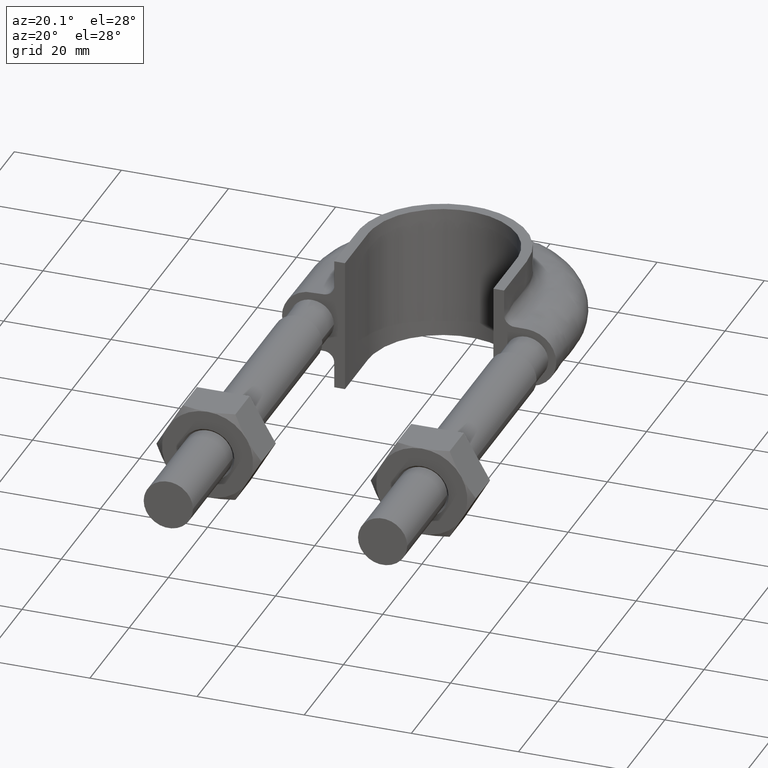
[diagram: clean part render]
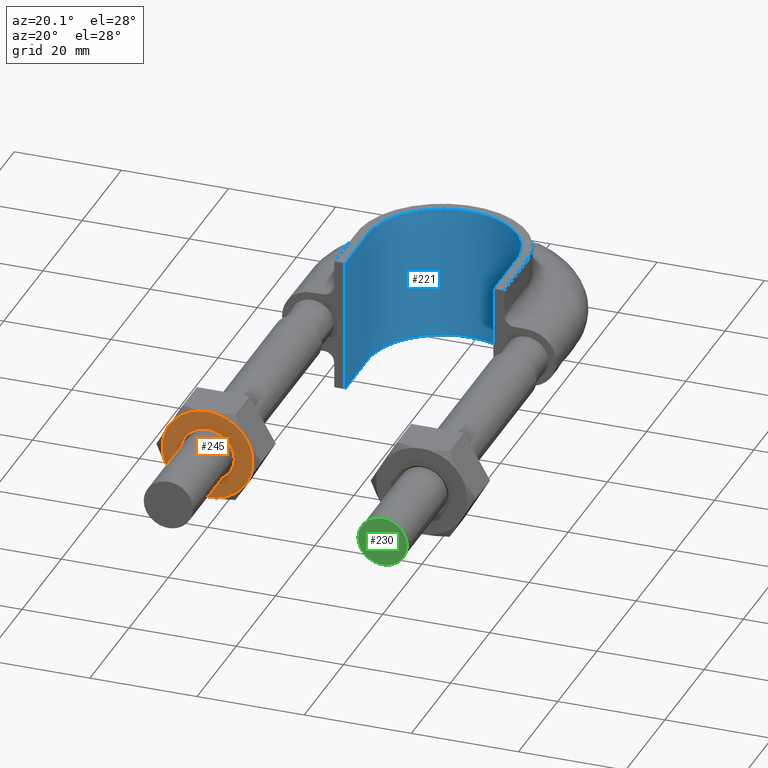
[diagram: same view with three faces highlighted in distinct colors, each labeled with its STEP entity id]
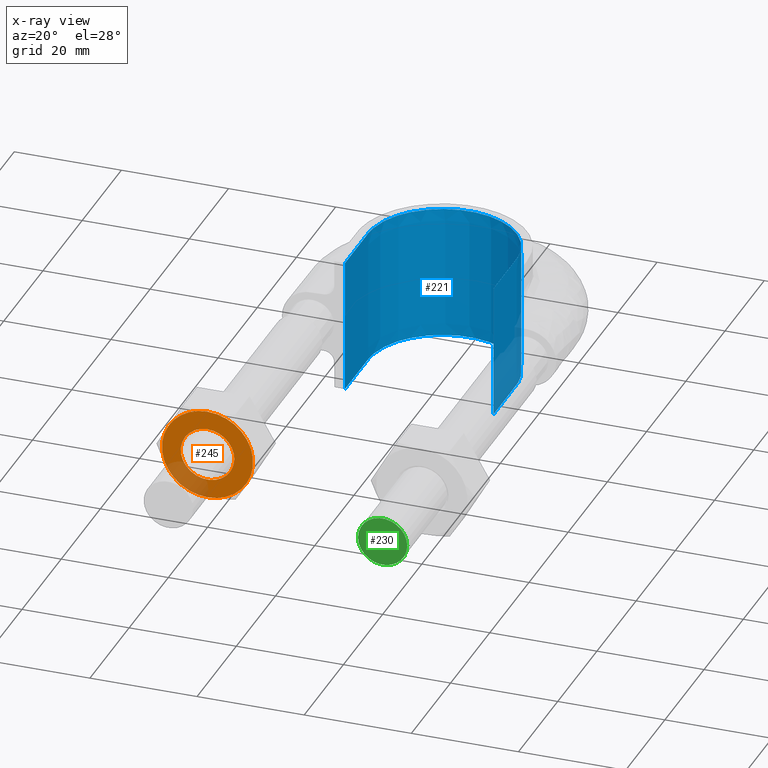
[diagram: x-ray of the same camera — body ghosted, the three highlighted faces saturated]
A machine part, auxiliary view with three faces highlighted in distinct colors.
The next image is the same camera in x-ray (body ghosted, the three faces saturated) — at least one of them is partly hidden behind the body in this view.
Their STEP definitions:

[orange] entity #245 — the highlighted planar face has unit normal (0, 1, 0).
#245 = ADVANCED_FACE( '', ( #342, #343 ), #344, .F. );
#342 = FACE_OUTER_BOUND( '', #1200, .T. );
#343 = FACE_BOUND( '', #1201, .T. );
#344 = PLANE( '', #1202 );
#1200 = EDGE_LOOP( '', ( #1475, #1476, #1477, #1478, #1479, #1480 ) );
#1201 = EDGE_LOOP( '', ( #1481 ) );
#1202 = AXIS2_PLACEMENT_3D( '', #1482, #1483, #1484 );
#1475 = ORIENTED_EDGE( '', *, *, #1791, .F. );
#1476 = ORIENTED_EDGE( '', *, *, #1759, .F. );
#1477 = ORIENTED_EDGE( '', *, *, #1771, .F. );
#1478 = ORIENTED_EDGE( '', *, *, #1788, .F. );
#1479 = ORIENTED_EDGE( '', *, *, #1757, .F. );
#1480 = ORIENTED_EDGE( '', *, *, #1797, .F. );
#1481 = ORIENTED_EDGE( '', *, *, #1798, .T. );
#1482 = CARTESIAN_POINT( '', ( -20.0000000000000, 20.0000000000000, -2.44921270764399E-016 ) );
#1483 = DIRECTION( '', ( 2.99932144364429E-032, 1.00000000000000, 6.12303176911191E-017 ) );
#1484 = DIRECTION( '', ( 1.00000000000000, 5.47382212626882E-048, -4.89842541528951E-016 ) );
#1757 = EDGE_CURVE( '', #1898, #1900, #1901, .T. );
#1759 = EDGE_CURVE( '', #1903, #1904, #1905, .T. );
#1771 = EDGE_CURVE( '', #1919, #1903, #1926, .T. );
#1788 = EDGE_CURVE( '', #1900, #1919, #1956, .T. );
#1791 = EDGE_CURVE( '', #1904, #1960, #1961, .T. );
#1797 = EDGE_CURVE( '', #1960, #1898, #1969, .T. );
#1798 = EDGE_CURVE( '', #1970, #1970, #1971, .T. );
#1898 = VERTEX_POINT( '', #2276 );
#1900 = VERTEX_POINT( '', #2283 );
#1901 = CIRCLE( '', #2284, 8.50000000000000 );
#1903 = VERTEX_POINT( '', #2291 );
#1904 = VERTEX_POINT( '', #2292 );
#1905 = CIRCLE( '', #2293, 8.50000000000000 );
#1919 = VERTEX_POINT( '', #2319 );
#1926 = CIRCLE( '', #2338, 8.50000000000000 );
#1956 = CIRCLE( '', #2380, 8.50000000000000 );
#1960 = VERTEX_POINT( '', #2389 );
#1961 = CIRCLE( '', #2390, 8.50000000000000 );
#1969 = CIRCLE( '', #2410, 8.50000000000000 );
#1970 = VERTEX_POINT( '', #2411 );
#1971 = CIRCLE( '', #2412, 5.00000000000000 );
#2276 = CARTESIAN_POINT( '', ( -12.6387840678328, 20.0000000000000, -4.25000000000099 ) );
#2283 = CARTESIAN_POINT( '', ( -20.0000000000000, 19.9999999999998, -8.49999999999967 ) );
#2284 = AXIS2_PLACEMENT_3D( '', #2622, #2623, #2624 );
#2291 = CARTESIAN_POINT( '', ( -27.3612159321672, 20.0000000000000, 4.25000000000099 ) );
#2292 = CARTESIAN_POINT( '', ( -20.0000000000000, 19.9999999999998, 8.49999999999967 ) );
#2293 = AXIS2_PLACEMENT_3D( '', #2625, #2626, #2627 );
#2319 = CARTESIAN_POINT( '', ( -27.3612159321674, 19.9999999999990, -4.24999999999716 ) );
#2338 = AXIS2_PLACEMENT_3D( '', #2641, #2642, #2643 );
#2380 = AXIS2_PLACEMENT_3D( '', #2675, #2676, #2677 );
#2389 = CARTESIAN_POINT( '', ( -12.6387840678326, 19.9999999999990, 4.24999999999716 ) );
#2390 = AXIS2_PLACEMENT_3D( '', #2681, #2682, #2683 );
#2410 = AXIS2_PLACEMENT_3D( '', #2689, #2690, #2691 );
#2411 = CARTESIAN_POINT( '', ( -20.0000000000000, 20.0000000000000, 5.00000000000000 ) );
#2412 = AXIS2_PLACEMENT_3D( '', #2692, #2693, #2694 );
#2622 = CARTESIAN_POINT( '', ( -20.0000000000000, 20.0000000000000, -2.44921270764402E-016 ) );
#2623 = DIRECTION( '', ( 2.99932144364429E-032, 1.00000000000000, 6.12303176911191E-017 ) );
#2624 = DIRECTION( '', ( 0.000000000000000, -6.12303176911191E-017, 1.00000000000000 ) );
#2625 = CARTESIAN_POINT( '', ( -20.0000000000000, 20.0000000000000, -2.44921270764402E-016 ) );
#2626 = DIRECTION( '', ( 2.99932144364429E-032, 1.00000000000000, 6.12303176911191E-017 ) );
#2627 = DIRECTION( '', ( 0.000000000000000, -6.12303176911191E-017, 1.00000000000000 ) );
#2641 = CARTESIAN_POINT( '', ( -20.0000000000000, 20.0000000000000, -2.44921270764402E-016 ) );
#2642 = DIRECTION( '', ( 2.99932144364429E-032, 1.00000000000000, 6.12303176911191E-017 ) );
#2643 = DIRECTION( '', ( 0.000000000000000, -6.12303176911191E-017, 1.00000000000000 ) );
#2675 = CARTESIAN_POINT( '', ( -20.0000000000000, 20.0000000000000, -2.44921270764402E-016 ) );
#2676 = DIRECTION( '', ( 2.99932144364429E-032, 1.00000000000000, 6.12303176911191E-017 ) );
#2677 = DIRECTION( '', ( 0.000000000000000, -6.12303176911191E-017, 1.00000000000000 ) );
#2681 = CARTESIAN_POINT( '', ( -20.0000000000000, 20.0000000000000, -2.44921270764402E-016 ) );
#2682 = DIRECTION( '', ( 2.99932144364429E-032, 1.00000000000000, 6.12303176911191E-017 ) );
#2683 = DIRECTION( '', ( 0.000000000000000, -6.12303176911191E-017, 1.00000000000000 ) );
#2689 = CARTESIAN_POINT( '', ( -20.0000000000000, 20.0000000000000, -2.44921270764402E-016 ) );
#2690 = DIRECTION( '', ( 2.99932144364429E-032, 1.00000000000000, 6.12303176911191E-017 ) );
#2691 = DIRECTION( '', ( 0.000000000000000, -6.12303176911191E-017, 1.00000000000000 ) );
#2692 = CARTESIAN_POINT( '', ( -20.0000000000000, 20.0000000000000, -2.44921270764400E-016 ) );
#2693 = DIRECTION( '', ( 2.99932144364429E-032, 1.00000000000000, 6.12303176911191E-017 ) );
#2694 = DIRECTION( '', ( 0.000000000000000, -6.12303176911191E-017, 1.00000000000000 ) );

[blue] entity #221 — the highlighted face is a SurfaceOfExtrusion surface.
#221 = ADVANCED_FACE( '', ( #285 ), #286, .T. );
#285 = FACE_OUTER_BOUND( '', #424, .T. );
#286 = SURFACE_OF_LINEAR_EXTRUSION( '', #425, #426 );
#424 = EDGE_LOOP( '', ( #1292, #1293, #1294, #1295 ) );
#425 = B_SPLINE_CURVE_WITH_KNOTS( '', 3, ( #1296, #1297, #1298, #1299, #1300, #1301, #1302, #1303, #1304, #1305, #1306, #1307, #1308, #1309, #1310, #1311, #1312, #1313 ), .UNSPECIFIED., .F., .F., ( 4, 3, 1, 1, 1, 1, 1, 1, 1, 1, 3, 4 ), ( 0.263975155279503, 1.00000000000000, 1.50000000000000, 1.75000000000000, 2.00000000000000, 3.00000000000000, 4.00000000000000, 5.00000000000000, 5.25000000000000, 5.50000000000000, 6.00000000000000, 6.73602484472050 ), .UNSPECIFIED. );
#426 = VECTOR( '', #1314, 1000.00000000000 );
#1292 = ORIENTED_EDGE( '', *, *, #1736, .F. );
#1293 = ORIENTED_EDGE( '', *, *, #1742, .T. );
#1294 = ORIENTED_EDGE( '', *, *, #1743, .T. );
#1295 = ORIENTED_EDGE( '', *, *, #1739, .F. );
#1296 = CARTESIAN_POINT( '', ( -13.8500000000000, 73.3000000000000, -59.0898515348929 ) );
#1297 = CARTESIAN_POINT( '', ( -13.8500000000000, 77.2500000000000, -59.0898515348929 ) );
#1298 = CARTESIAN_POINT( '', ( -13.8500000000000, 81.2000000000000, -59.0898515348929 ) );
#1299 = CARTESIAN_POINT( '', ( -13.8500000000000, 85.1500000000000, -59.0898515348929 ) );
#1300 = CARTESIAN_POINT( '', ( -13.8500000000000, 86.5764090913196, -59.0898515348929 ) );
#1301 = CARTESIAN_POINT( '', ( -13.4987711149041, 88.7652103300043, -59.0898515348929 ) );
#1302 = CARTESIAN_POINT( '', ( -12.3762577063388, 91.4805432618923, -59.0898515348929 ) );
#1303 = CARTESIAN_POINT( '', ( -10.1312776771716, 95.1665191788760, -59.0898515348929 ) );
#1304 = CARTESIAN_POINT( '', ( -4.56410324862349, 99.2237366283484, -59.0898515348929 ) );
#1305 = CARTESIAN_POINT( '', ( 4.56410324862353, 99.2237366283484, -59.0898515348929 ) );
#1306 = CARTESIAN_POINT( '', ( 10.1312776771716, 95.1665191788760, -59.0898515348929 ) );
#1307 = CARTESIAN_POINT( '', ( 12.3762577063388, 91.4805432618923, -59.0898515348929 ) );
#1308 = CARTESIAN_POINT( '', ( 13.4987711149041, 88.7652103300043, -59.0898515348929 ) );
#1309 = CARTESIAN_POINT( '', ( 13.8500000000000, 86.5764090913196, -59.0898515348929 ) );
#1310 = CARTESIAN_POINT( '', ( 13.8500000000000, 85.1500000000000, -59.0898515348929 ) );
#1311 = CARTESIAN_POINT( '', ( 13.8500000000000, 81.2000000000000, -59.0898515348929 ) );
#1312 = CARTESIAN_POINT( '', ( 13.8500000000000, 77.2500000000000, -59.0898515348929 ) );
#1313 = CARTESIAN_POINT( '', ( 13.8500000000000, 73.3000000000000, -59.0898515348929 ) );
#1314 = DIRECTION( '', ( 0.000000000000000, 0.000000000000000, 1.00000000000000 ) );
#1736 = EDGE_CURVE( '', #1860, #1862, #1863, .T. );
#1739 = EDGE_CURVE( '', #1862, #1867, #1868, .T. );
#1742 = EDGE_CURVE( '', #1860, #1872, #1873, .T. );
#1743 = EDGE_CURVE( '', #1872, #1867, #1874, .T. );
#1860 = VERTEX_POINT( '', #2068 );
#1862 = VERTEX_POINT( '', #2071 );
#1863 = LINE( '', #2072, #2073 );
#1867 = VERTEX_POINT( '', #2108 );
#1868 = B_SPLINE_CURVE_WITH_KNOTS( '', 3, ( #2109, #2110, #2111, #2112, #2113, #2114, #2115, #2116, #2117, #2118, #2119, #2120, #2121, #2122, #2123, #2124, #2125, #2126 ), .UNSPECIFIED., .F., .F., ( 4, 3, 1, 1, 1, 1, 1, 1, 1, 1, 3, 4 ), ( 0.263975155279503, 1.00000000000000, 1.50000000000000, 1.75000000000000, 2.00000000000000, 3.00000000000000, 4.00000000000000, 5.00000000000000, 5.25000000000000, 5.50000000000000, 6.00000000000000, 6.73602484472050 ), .UNSPECIFIED. );
#1872 = VERTEX_POINT( '', #2148 );
#1873 = B_SPLINE_CURVE_WITH_KNOTS( '', 3, ( #2149, #2150, #2151, #2152, #2153, #2154, #2155, #2156, #2157, #2158, #2159, #2160, #2161, #2162, #2163, #2164, #2165, #2166 ), .UNSPECIFIED., .F., .F., ( 4, 3, 1, 1, 1, 1, 1, 1, 1, 1, 3, 4 ), ( 0.263975155279503, 1.00000000000000, 1.50000000000000, 1.75000000000000, 2.00000000000000, 3.00000000000000, 4.00000000000000, 5.00000000000000, 5.25000000000000, 5.50000000000000, 6.00000000000000, 6.73602484472050 ), .UNSPECIFIED. );
#1874 = LINE( '', #2167, #2168 );
#2068 = CARTESIAN_POINT( '', ( -13.8500000000000, 73.3000000000000, -12.5000000000000 ) );
#2071 = CARTESIAN_POINT( '', ( -13.8500000000000, 73.3000000000000, 12.5000000000000 ) );
#2072 = CARTESIAN_POINT( '', ( -13.8500000000000, 73.3000000000000, -59.0898515348929 ) );
#2073 = VECTOR( '', #2602, 1000.00000000000 );
#2108 = CARTESIAN_POINT( '', ( 13.8500000000000, 73.3000000000000, 12.5000000000000 ) );
#2109 = CARTESIAN_POINT( '', ( -13.8500000000000, 73.3000000000000, 12.5000000000000 ) );
#2110 = CARTESIAN_POINT( '', ( -13.8500000000000, 77.2500000000000, 12.5000000000000 ) );
#2111 = CARTESIAN_POINT( '', ( -13.8500000000000, 81.2000000000000, 12.5000000000000 ) );
#2112 = CARTESIAN_POINT( '', ( -13.8500000000000, 85.1500000000000, 12.5000000000000 ) );
#2113 = CARTESIAN_POINT( '', ( -13.8500000000000, 86.5764090913196, 12.5000000000000 ) );
#2114 = CARTESIAN_POINT( '', ( -13.4987711149041, 88.7652103300043, 12.5000000000000 ) );
#2115 = CARTESIAN_POINT( '', ( -12.3762577063388, 91.4805432618923, 12.5000000000000 ) );
#2116 = CARTESIAN_POINT( '', ( -10.1312776771716, 95.1665191788760, 12.5000000000000 ) );
#2117 = CARTESIAN_POINT( '', ( -4.56410324862349, 99.2237366283484, 12.5000000000000 ) );
#2118 = CARTESIAN_POINT( '', ( 4.56410324862353, 99.2237366283484, 12.5000000000000 ) );
#2119 = CARTESIAN_POINT( '', ( 10.1312776771716, 95.1665191788760, 12.5000000000000 ) );
#2120 = CARTESIAN_POINT( '', ( 12.3762577063388, 91.4805432618923, 12.5000000000000 ) );
#2121 = CARTESIAN_POINT( '', ( 13.4987711149041, 88.7652103300043, 12.5000000000000 ) );
#2122 = CARTESIAN_POINT( '', ( 13.8500000000000, 86.5764090913196, 12.5000000000000 ) );
#2123 = CARTESIAN_POINT( '', ( 13.8500000000000, 85.1500000000000, 12.5000000000000 ) );
#2124 = CARTESIAN_POINT( '', ( 13.8500000000000, 81.2000000000000, 12.5000000000000 ) );
#2125 = CARTESIAN_POINT( '', ( 13.8500000000000, 77.2500000000000, 12.5000000000000 ) );
#2126 = CARTESIAN_POINT( '', ( 13.8500000000000, 73.3000000000000, 12.5000000000000 ) );
#2148 = CARTESIAN_POINT( '', ( 13.8500000000000, 73.3000000000000, -12.5000000000000 ) );
#2149 = CARTESIAN_POINT( '', ( -13.8500000000000, 73.3000000000000, -12.5000000000000 ) );
#2150 = CARTESIAN_POINT( '', ( -13.8500000000000, 77.2500000000000, -12.5000000000000 ) );
#2151 = CARTESIAN_POINT( '', ( -13.8500000000000, 81.2000000000000, -12.5000000000000 ) );
#2152 = CARTESIAN_POINT( '', ( -13.8500000000000, 85.1500000000000, -12.5000000000000 ) );
#2153 = CARTESIAN_POINT( '', ( -13.8500000000000, 86.5764090913196, -12.5000000000000 ) );
#2154 = CARTESIAN_POINT( '', ( -13.4987711149041, 88.7652103300043, -12.5000000000000 ) );
#2155 = CARTESIAN_POINT( '', ( -12.3762577063388, 91.4805432618923, -12.5000000000000 ) );
#2156 = CARTESIAN_POINT( '', ( -10.1312776771716, 95.1665191788760, -12.5000000000000 ) );
#2157 = CARTESIAN_POINT( '', ( -4.56410324862349, 99.2237366283484, -12.5000000000000 ) );
#2158 = CARTESIAN_POINT( '', ( 4.56410324862353, 99.2237366283484, -12.5000000000000 ) );
#2159 = CARTESIAN_POINT( '', ( 10.1312776771716, 95.1665191788760, -12.5000000000000 ) );
#2160 = CARTESIAN_POINT( '', ( 12.3762577063388, 91.4805432618923, -12.5000000000000 ) );
#2161 = CARTESIAN_POINT( '', ( 13.4987711149041, 88.7652103300043, -12.5000000000000 ) );
#2162 = CARTESIAN_POINT( '', ( 13.8500000000000, 86.5764090913196, -12.5000000000000 ) );
#2163 = CARTESIAN_POINT( '', ( 13.8500000000000, 85.1500000000000, -12.5000000000000 ) );
#2164 = CARTESIAN_POINT( '', ( 13.8500000000000, 81.2000000000000, -12.5000000000000 ) );
#2165 = CARTESIAN_POINT( '', ( 13.8500000000000, 77.2500000000000, -12.5000000000000 ) );
#2166 = CARTESIAN_POINT( '', ( 13.8500000000000, 73.3000000000000, -12.5000000000000 ) );
#2167 = CARTESIAN_POINT( '', ( 13.8500000000000, 73.3000000000000, -59.0898515348929 ) );
#2168 = VECTOR( '', #2605, 1000.00000000000 );
#2602 = DIRECTION( '', ( 0.000000000000000, 0.000000000000000, 1.00000000000000 ) );
#2605 = DIRECTION( '', ( 0.000000000000000, 0.000000000000000, 1.00000000000000 ) );

[green] entity #230 — the highlighted planar face has unit normal (-0, -1, -0).
#230 = ADVANCED_FACE( '', ( #308 ), #309, .T. );
#308 = FACE_OUTER_BOUND( '', #1166, .T. );
#309 = PLANE( '', #1167 );
#1166 = EDGE_LOOP( '', ( #1371 ) );
#1167 = AXIS2_PLACEMENT_3D( '', #1372, #1373, #1374 );
#1371 = ORIENTED_EDGE( '', *, *, #1750, .T. );
#1372 = CARTESIAN_POINT( '', ( 20.0000000000000, -9.79685083057902E-015, -4.49898216546641E-031 ) );
#1373 = DIRECTION( '', ( -4.89842541528951E-016, -1.00000000000000, -6.12303176911189E-017 ) );
#1374 = DIRECTION( '', ( -1.00000000000000, 4.89842541528951E-016, 6.03777548009827E-048 ) );
#1750 = EDGE_CURVE( '', #1885, #1885, #1886, .T. );
#1885 = VERTEX_POINT( '', #2254 );
#1886 = CIRCLE( '', #2255, 4.60000000000000 );
#2254 = CARTESIAN_POINT( '', ( 24.6000000000000, -1.20501265216122E-014, -5.53374806352369E-031 ) );
#2255 = AXIS2_PLACEMENT_3D( '', #2607, #2608, #2609 );
#2607 = CARTESIAN_POINT( '', ( 20.0000000000000, -9.79685083057902E-015, -4.49898216546641E-031 ) );
#2608 = DIRECTION( '', ( -4.89842541528951E-016, -1.00000000000000, -6.12303176911189E-017 ) );
#2609 = DIRECTION( '', ( 1.00000000000000, -4.89842541528951E-016, -2.24949108273321E-032 ) );